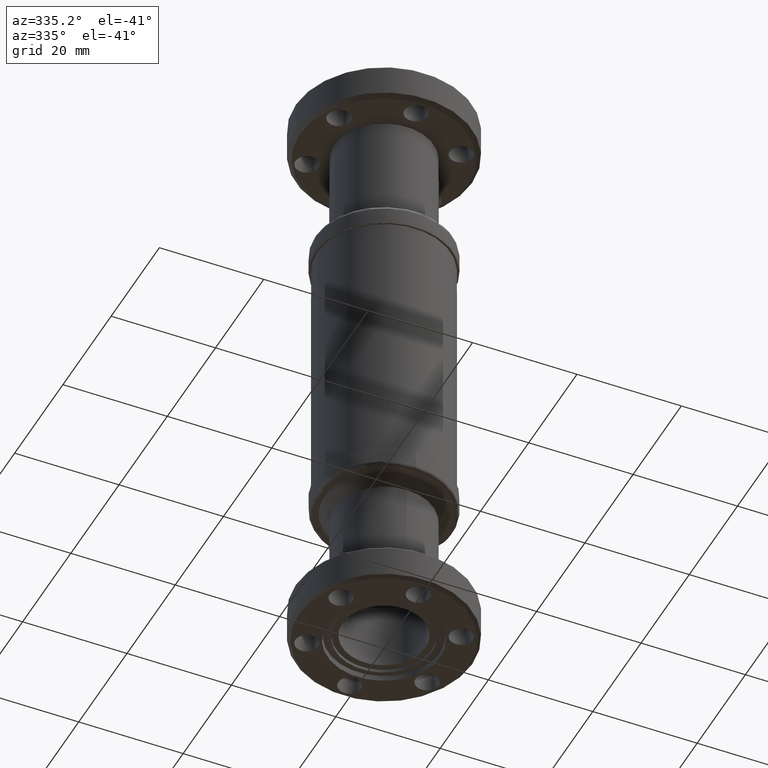
[diagram: clean part render]
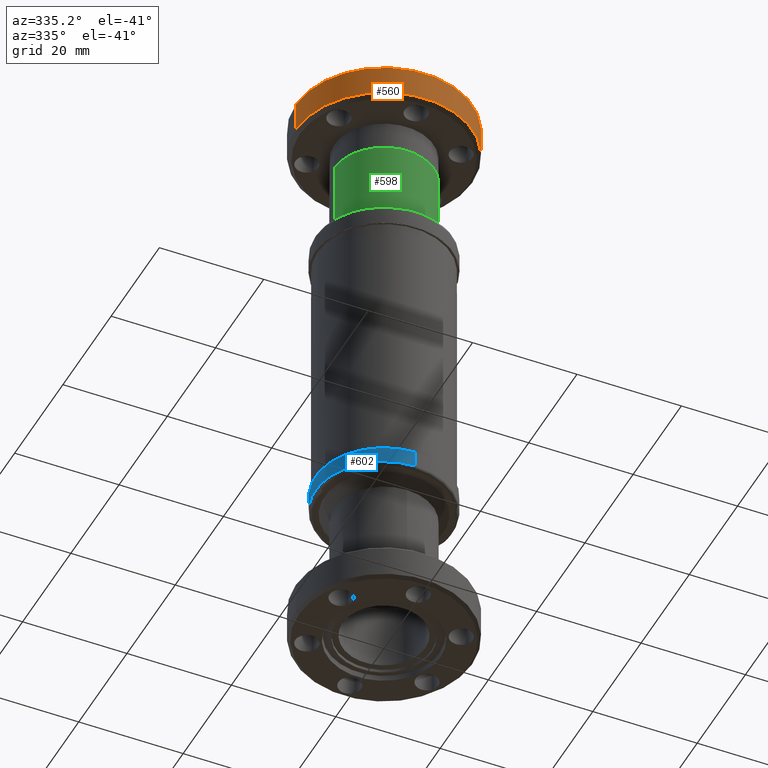
[diagram: same view with three faces highlighted in distinct colors, each labeled with its STEP entity id]
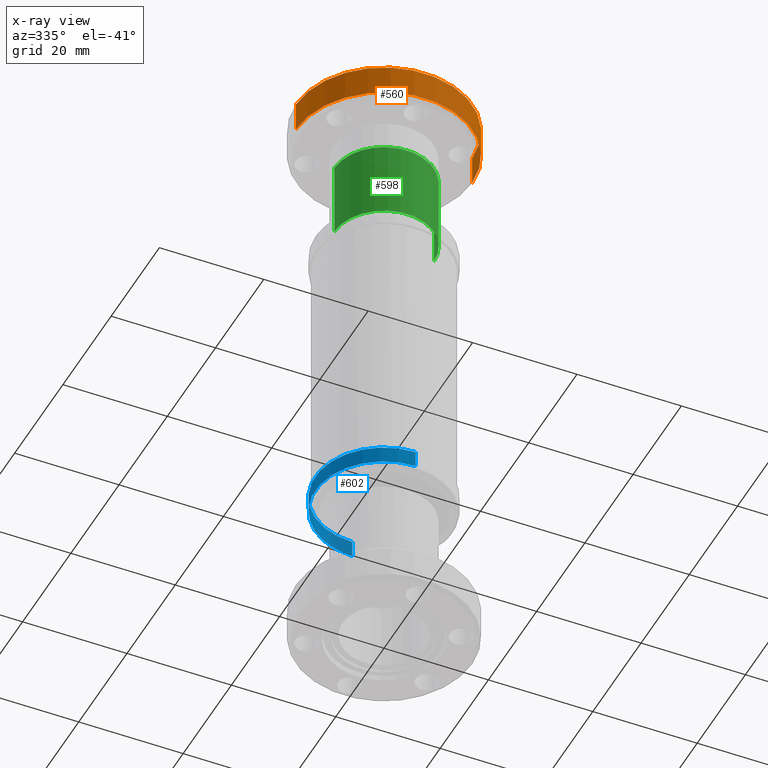
[diagram: x-ray of the same camera — body ghosted, the three highlighted faces saturated]
A machine part, auxiliary view with three faces highlighted in distinct colors.
The next image is the same camera in x-ray (body ghosted, the three faces saturated) — at least one of them is partly hidden behind the body in this view.
Their STEP definitions:

[orange] entity #560 — the highlighted cylindrical surface (partial cylindrical patch) has radius 16.891 mm, axis along (-0, 0, 1).
#41 = CYLINDRICAL_SURFACE ( 'NONE', #4332, 0.6650000000000000400 ) ;
#301 = FACE_OUTER_BOUND ( 'NONE', #3153, .T. ) ;
#560 = ADVANCED_FACE ( 'NONE', ( #301 ), #41, .T. ) ;
#712 = AXIS2_PLACEMENT_3D ( 'NONE', #1609, #1608, #1607 ) ;
#742 = AXIS2_PLACEMENT_3D ( 'NONE', #1542, #1541, #1535 ) ;
#860 = EDGE_CURVE ( 'NONE', #3352, #3247, #3757, .T. ) ;
#892 = EDGE_CURVE ( 'NONE', #3373, #3906, #3750, .T. ) ;
#934 = CARTESIAN_POINT ( 'NONE',  ( -0.6650000000000014800, 1.857793773456713700E-016, 3.221970110498948400 ) ) ;
#1124 = CARTESIAN_POINT ( 'NONE',  ( -0.6650000000000005900, 1.208522598759678900E-016, 3.446970110498948100 ) ) ;
#1204 = CARTESIAN_POINT ( 'NONE',  ( 0.6649999999999985900, 2.022912720192668300E-016, 3.446970110498948100 ) ) ;
#1208 = CARTESIAN_POINT ( 'NONE',  ( 0.6649999999999999200, 1.043403652023723500E-016, 3.221970110498948400 ) ) ;
#1535 = DIRECTION ( 'NONE',  ( 1.000000000000000000, 0.0000000000000000000, 0.0000000000000000000 ) ) ;
#1541 = DIRECTION ( 'NONE',  ( 2.850142584870308900E-016, -1.461969761368827600E-016, -1.000000000000000000 ) ) ;
#1542 = CARTESIAN_POINT ( 'NONE',  ( -8.719326058411548600E-016, 1.207875250177715900E-016, 3.446970110498948100 ) ) ;
#1607 = DIRECTION ( 'NONE',  ( -0.9999778036231552500, 0.006662751759641238500, 0.0000000000000000000 ) ) ;
#1608 = DIRECTION ( 'NONE',  ( 2.850142584870308900E-016, -1.461969761368827600E-016, -1.000000000000000000 ) ) ;
#1609 = CARTESIAN_POINT ( 'NONE',  ( -8.078043976815732300E-016, 8.789320538697306600E-017, 3.221970110498948400 ) ) ;
#1786 = EDGE_CURVE ( 'NONE', #3906, #3247, #3559, .T. ) ;
#1832 = EDGE_CURVE ( 'NONE', #3373, #3352, #3509, .T. ) ;
#3153 = EDGE_LOOP ( 'NONE', ( #3962, #4205, #4120, #3969 ) ) ;
#3247 = VERTEX_POINT ( 'NONE', #1124 ) ;
#3352 = VERTEX_POINT ( 'NONE', #934 ) ;
#3373 = VERTEX_POINT ( 'NONE', #1208 ) ;
#3509 = CIRCLE ( 'NONE', #712, 0.6650000000000007000 ) ;
#3559 = CIRCLE ( 'NONE', #742, 0.6650000000000000400 ) ;
#3747 = VECTOR ( 'NONE', #4920, 39.37007874015748100 ) ;
#3750 = LINE ( 'NONE', #4922, #3747 ) ;
#3752 = VECTOR ( 'NONE', #4930, 39.37007874015748100 ) ;
#3757 = LINE ( 'NONE', #4938, #3752 ) ;
#3906 = VERTEX_POINT ( 'NONE', #1204 ) ;
#3962 = ORIENTED_EDGE ( 'NONE', *, *, #860, .F. ) ;
#3969 = ORIENTED_EDGE ( 'NONE', *, *, #1786, .T. ) ;
#4120 = ORIENTED_EDGE ( 'NONE', *, *, #892, .T. ) ;
#4205 = ORIENTED_EDGE ( 'NONE', *, *, #1832, .F. ) ;
#4332 = AXIS2_PLACEMENT_3D ( 'NONE', #4957, #4963, #4967 ) ;
#4920 = DIRECTION ( 'NONE',  ( -2.850142584870308900E-016, 1.461969761368827600E-016, 1.000000000000000000 ) ) ;
#4922 = CARTESIAN_POINT ( 'NONE',  ( 0.6649999999999990400, 1.836522247566312100E-016, 3.876970110498948200 ) ) ;
#4930 = DIRECTION ( 'NONE',  ( -2.850142584870308900E-016, 1.461969761368827600E-016, 1.000000000000000000 ) ) ;
#4938 = CARTESIAN_POINT ( 'NONE',  ( -0.6650000000000009200, 2.650912368999302300E-016, 3.876970110498948200 ) ) ;
#4957 = CARTESIAN_POINT ( 'NONE',  ( -9.944887369905782200E-016, 1.836522247566312100E-016, 3.876970110498948200 ) ) ;
#4963 = DIRECTION ( 'NONE',  ( -2.850142584870308900E-016, 1.461969761368827600E-016, 1.000000000000000000 ) ) ;
#4967 = DIRECTION ( 'NONE',  ( 1.000000000000000000, 0.0000000000000000000, 0.0000000000000000000 ) ) ;

[blue] entity #602 — the highlighted cylindrical surface (partial cylindrical patch) has radius 13.1445 mm, axis along (0, 0, 1).
#17 = VECTOR ( 'NONE', #2368, 39.37007874015748100 ) ;
#62 = LINE ( 'NONE', #2367, #17 ) ;
#77 = VECTOR ( 'NONE', #2439, 39.37007874015748100 ) ;
#150 = CIRCLE ( 'NONE', #842, 0.5174999999999986300 ) ;
#227 = CIRCLE ( 'NONE', #870, 0.5174999999999986300 ) ;
#299 = LINE ( 'NONE', #2154, #77 ) ;
#432 = EDGE_CURVE ( 'NONE', #3308, #3296, #299, .T. ) ;
#449 = EDGE_CURVE ( 'NONE', #2942, #3308, #227, .T. ) ;
#460 = EDGE_CURVE ( 'NONE', #2942, #3952, #62, .T. ) ;
#485 = EDGE_CURVE ( 'NONE', #3296, #3952, #150, .T. ) ;
#602 = ADVANCED_FACE ( 'NONE', ( #3841 ), #3835, .T. ) ;
#842 = AXIS2_PLACEMENT_3D ( 'NONE', #2157, #2156, #2155 ) ;
#870 = AXIS2_PLACEMENT_3D ( 'NONE', #2399, #2398, #2397 ) ;
#1035 = CARTESIAN_POINT ( 'NONE',  ( 9.752357177667863500E-017, -0.5174999999999986300, 0.001892980935141851800 ) ) ;
#1047 = CARTESIAN_POINT ( 'NONE',  ( 1.642803568067019000E-035, -0.5174999999999986300, 0.1282472551357738100 ) ) ;
#1143 = CARTESIAN_POINT ( 'NONE',  ( 6.475282079651252500E-017, 0.5174999999999986300, 0.1282472551357736700 ) ) ;
#1184 = CARTESIAN_POINT ( 'NONE',  ( 3.414809992080329000E-017, 0.5174999999999986300, 0.001892980935141726900 ) ) ;
#2154 = CARTESIAN_POINT ( 'NONE',  ( 8.378633314949271000E-017, -0.5174999999999981800, 3.958319077280302500 ) ) ;
#2155 = DIRECTION ( 'NONE',  ( 3.174499648438692700E-035, -1.000000000000000000, 1.319733330272594400E-016 ) ) ;
#2156 = DIRECTION ( 'NONE',  ( -2.808876982802669900E-017, -1.331034998761013300E-016, -1.000000000000000000 ) ) ;
#2157 = CARTESIAN_POINT ( 'NONE',  ( 0.0000000000000000000, 0.0000000000000000000, 0.1282472551357737600 ) ) ;
#2367 = CARTESIAN_POINT ( 'NONE',  ( 1.471618050053680800E-016, 0.5174999999999990700, 3.958319077280302500 ) ) ;
#2368 = DIRECTION ( 'NONE',  ( 2.116714987187462500E-017, 1.206174074689182600E-016, 1.000000000000000000 ) ) ;
#2397 = DIRECTION ( 'NONE',  ( 0.0000000000000000000, -1.000000000000000000, 1.206318747202293300E-016 ) ) ;
#2398 = DIRECTION ( 'NONE',  ( 2.116714987187462500E-017, 1.206174074689182600E-016, 1.000000000000000000 ) ) ;
#2399 = CARTESIAN_POINT ( 'NONE',  ( 4.006901115881039900E-020, 2.283264527848689100E-019, 0.001892980935141789400 ) ) ;
#2439 = DIRECTION ( 'NONE',  ( 2.116714987187462500E-017, 1.206174074689182600E-016, 1.000000000000000000 ) ) ;
#2942 = VERTEX_POINT ( 'NONE', #1184 ) ;
#3203 = EDGE_LOOP ( 'NONE', ( #4184, #4063, #4186, #4142 ) ) ;
#3296 = VERTEX_POINT ( 'NONE', #1047 ) ;
#3308 = VERTEX_POINT ( 'NONE', #1035 ) ;
#3835 = CYLINDRICAL_SURFACE ( 'NONE', #4289, 0.5174999999999986300 ) ;
#3841 = FACE_OUTER_BOUND ( 'NONE', #3203, .T. ) ;
#3952 = VERTEX_POINT ( 'NONE', #1143 ) ;
#4063 = ORIENTED_EDGE ( 'NONE', *, *, #449, .T. ) ;
#4142 = ORIENTED_EDGE ( 'NONE', *, *, #485, .T. ) ;
#4184 = ORIENTED_EDGE ( 'NONE', *, *, #460, .F. ) ;
#4186 = ORIENTED_EDGE ( 'NONE', *, *, #432, .T. ) ;
#4289 = AXIS2_PLACEMENT_3D ( 'NONE', #4411, #4417, #4463 ) ;
#4411 = CARTESIAN_POINT ( 'NONE',  ( 8.378633314949271000E-017, 4.774421850363108000E-016, 3.958319077280302500 ) ) ;
#4417 = DIRECTION ( 'NONE',  ( 2.116714987187462500E-017, 1.206174074689182600E-016, 1.000000000000000000 ) ) ;
#4463 = DIRECTION ( 'NONE',  ( 0.0000000000000000000, -1.000000000000000000, 0.0000000000000000000 ) ) ;

[green] entity #598 — the highlighted cylindrical surface (partial cylindrical patch) has radius 9.525 mm, axis along (0, -0, -1).
#36 = CIRCLE ( 'NONE', #878, 0.3750000000000001100 ) ;
#46 = CIRCLE ( 'NONE', #875, 0.3749999999999983900 ) ;
#53 = LINE ( 'NONE', #2351, #348 ) ;
#231 = LINE ( 'NONE', #2174, #343 ) ;
#343 = VECTOR ( 'NONE', #2173, 39.37007874015748100 ) ;
#348 = VECTOR ( 'NONE', #2350, 39.37007874015748100 ) ;
#437 = EDGE_CURVE ( 'NONE', #3341, #3922, #36, .T. ) ;
#440 = EDGE_CURVE ( 'NONE', #3345, #4137, #46, .T. ) ;
#467 = EDGE_CURVE ( 'NONE', #3922, #4137, #53, .T. ) ;
#480 = EDGE_CURVE ( 'NONE', #3341, #3345, #231, .T. ) ;
#598 = ADVANCED_FACE ( 'NONE', ( #3845 ), #3843, .T. ) ;
#875 = AXIS2_PLACEMENT_3D ( 'NONE', #2034, #2030, #2025 ) ;
#878 = AXIS2_PLACEMENT_3D ( 'NONE', #2076, #2072, #2070 ) ;
#951 = CARTESIAN_POINT ( 'NONE',  ( 0.3749999999999983900, 4.360600893531877100E-017, 2.400683313934544500 ) ) ;
#956 = CARTESIAN_POINT ( 'NONE',  ( 0.3750000000000001100, 4.360600893531887000E-017, 2.976970110498947400 ) ) ;
#1131 = CARTESIAN_POINT ( 'NONE',  ( -0.3749999999999983900, -3.132974816495845000E-018, 2.400683313934544500 ) ) ;
#1182 = CARTESIAN_POINT ( 'NONE',  ( -0.3750000000000001100, 4.286112741700054100E-018, 2.976970110498947400 ) ) ;
#2025 = DIRECTION ( 'NONE',  ( -1.000000000000000000, 1.263733559309215400E-032, 0.0000000000000000000 ) ) ;
#2030 = DIRECTION ( 'NONE',  ( -3.014274122486804200E-016, 4.250222036860908900E-017, -1.000000000000000000 ) ) ;
#2034 = CARTESIAN_POINT ( 'NONE',  ( 2.221918016015250400E-017, -3.132974816495849600E-018, 2.400683313934544500 ) ) ;
#2070 = DIRECTION ( 'NONE',  ( -1.000000000000000000, 0.0000000000000000000, 0.0000000000000000000 ) ) ;
#2072 = DIRECTION ( 'NONE',  ( 1.625522968444819600E-016, -2.292038899304846600E-017, -1.000000000000000000 ) ) ;
#2076 = CARTESIAN_POINT ( 'NONE',  ( -3.039727950991805000E-017, 4.286112741700054100E-018, 2.976970110498947400 ) ) ;
#2173 = DIRECTION ( 'NONE',  ( 1.625522968444819600E-016, -2.292038899304846900E-017, -1.000000000000000000 ) ) ;
#2174 = CARTESIAN_POINT ( 'NONE',  ( 0.3750000000000001100, 4.545655884177433400E-017, 2.769564866661538400 ) ) ;
#2350 = DIRECTION ( 'NONE',  ( 1.625522968444819600E-016, -2.292038899304846900E-017, -1.000000000000000000 ) ) ;
#2351 = CARTESIAN_POINT ( 'NONE',  ( -0.3750000000000001100, -4.676961262514251600E-019, 2.769564866661538400 ) ) ;
#3194 = EDGE_LOOP ( 'NONE', ( #4115, #4168, #4038, #4129 ) ) ;
#3341 = VERTEX_POINT ( 'NONE', #956 ) ;
#3345 = VERTEX_POINT ( 'NONE', #951 ) ;
#3843 = CYLINDRICAL_SURFACE ( 'NONE', #4293, 0.3750000000000001100 ) ;
#3845 = FACE_OUTER_BOUND ( 'NONE', #3194, .T. ) ;
#3922 = VERTEX_POINT ( 'NONE', #1182 ) ;
#4038 = ORIENTED_EDGE ( 'NONE', *, *, #467, .T. ) ;
#4115 = ORIENTED_EDGE ( 'NONE', *, *, #480, .F. ) ;
#4129 = ORIENTED_EDGE ( 'NONE', *, *, #440, .F. ) ;
#4137 = VERTEX_POINT ( 'NONE', #1131 ) ;
#4168 = ORIENTED_EDGE ( 'NONE', *, *, #437, .T. ) ;
#4293 = AXIS2_PLACEMENT_3D ( 'NONE', #4558, #4577, #4943 ) ;
#4558 = CARTESIAN_POINT ( 'NONE',  ( 3.316919253442593100E-018, -4.676961262514251600E-019, 2.769564866661538400 ) ) ;
#4577 = DIRECTION ( 'NONE',  ( 1.625522968444819600E-016, -2.292038899304846600E-017, -1.000000000000000000 ) ) ;
#4943 = DIRECTION ( 'NONE',  ( -1.000000000000000000, 0.0000000000000000000, 0.0000000000000000000 ) ) ;